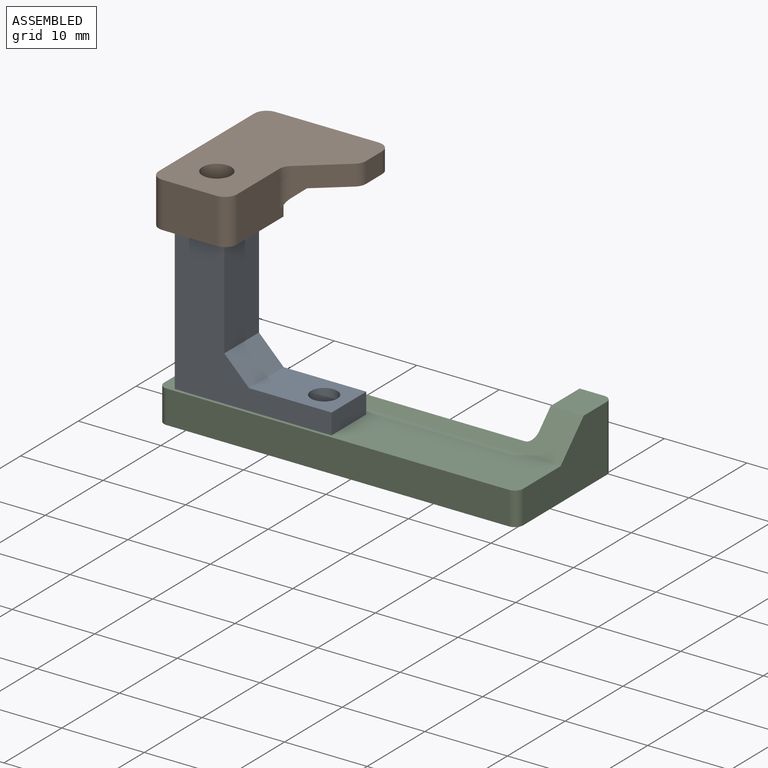
[diagram: assembled view]
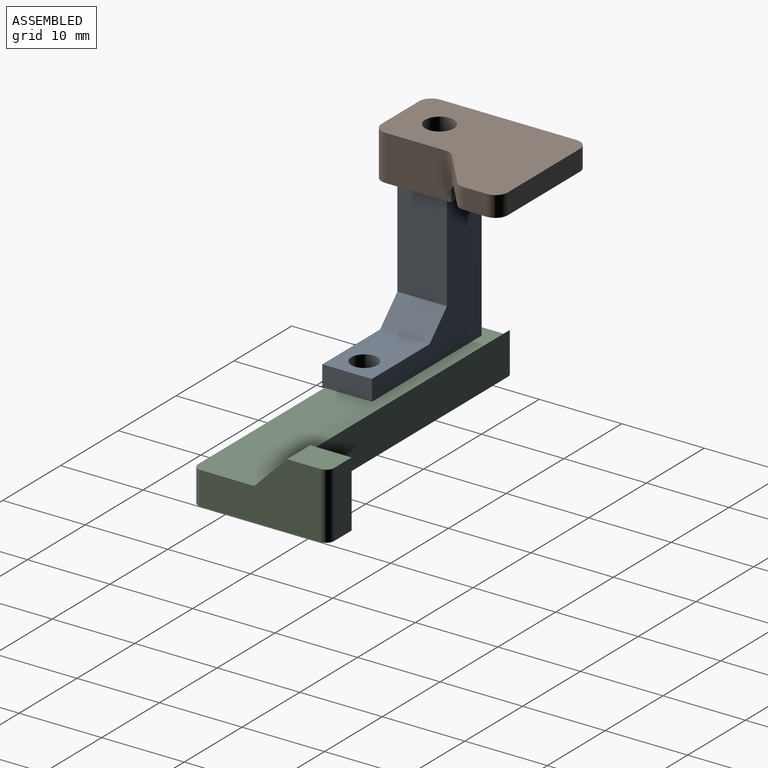
[diagram: assembled view, second angle]
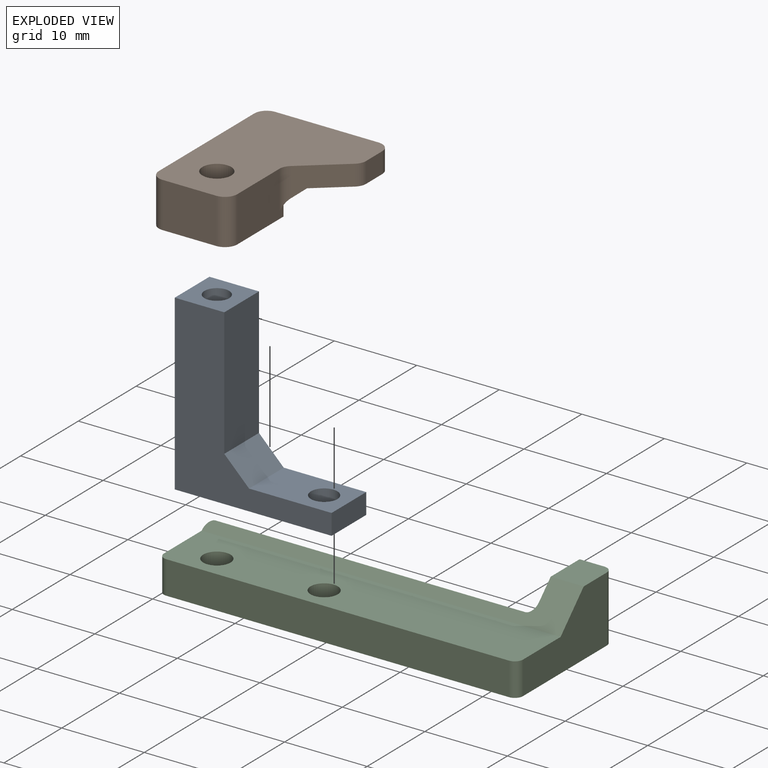
[diagram: exploded view]
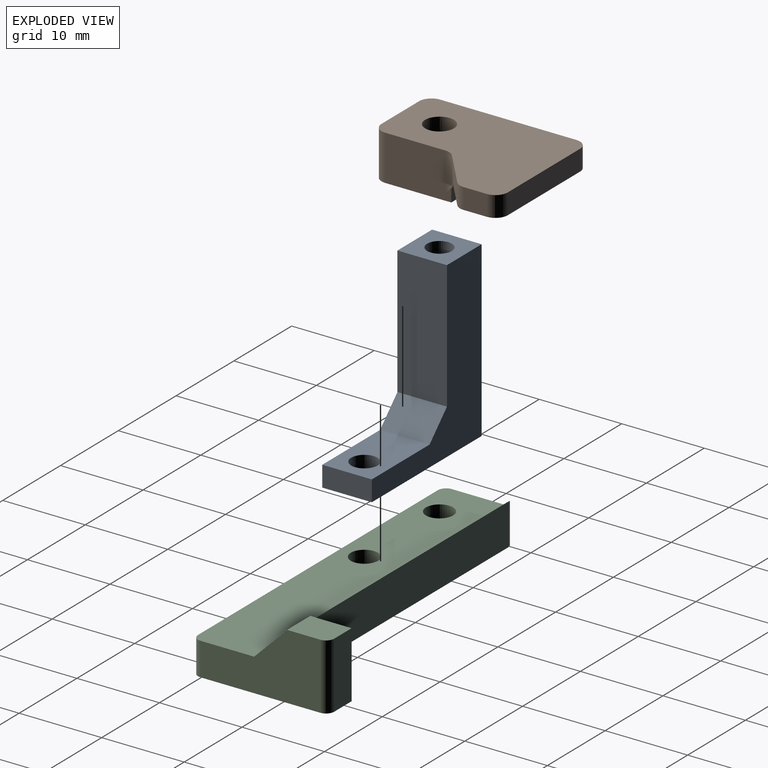
[diagram: exploded view, second angle]
ASSEMBLY  parts=3 mates=3
PART A: 11 faces, bbox 19x21x6 mm
  f0: plane 21x6mm, normal (-1,0,0), area 126mm2, adj f1,f5,f6,f7
  f1: plane 19x6mm, normal (0,-1,0), area 98.9mm2, adj f0,f2,f6,f7,f8,f9
  f2: plane 6x2.5mm, normal (1,0,0), area 15mm2, adj f1,f3,f6,f7
  f3: plane 10x6mm, normal (0,1,0), area 52mm2, adj f2,f6,f7,f9,f10
  f4: plane 15.5x6mm, normal (1,0,0), area 93mm2, adj f5,f6,f7,f10
  f5: plane 6x6mm, normal (0,1,0), area 28.9mm2, adj f0,f4,f6,f7,f8
  f6: plane 21x19mm, normal (0,0,1), area 163mm2, adj f0,f1,f2,f3,f4,f5,f10
  f7: plane 21x19mm, normal (0,0,-1), area 163mm2, adj f0,f1,f2,f3,f4,f5,f10
  f8: cylinder r=1.5mm len=21mm, axis (0,-1,0), area 197.9mm2, adj f1,f5
  f9: cylinder r=1.6mm len=3.2mm, axis (0,-1,0), area 25.1mm2, adj f1,f3
  f10: plane 6x3mm, normal (0.71,0.71,0), area 25.5mm2, adj f3,f4,f6,f7
PART B: 23 faces, bbox 15.5x19.5x5.5 mm
  f0: plane 6.5x3mm, normal (0,-1,0), area 19.5mm2, adj f1,f7,f8,f9
  f1: plane 6.5x3mm, normal (-1,0,0), area 19.5mm2, adj f0,f2,f8,f9
  f2: plane 6.5x3mm, normal (0,1,0), area 19.5mm2, adj f1,f7,f8,f9
  f3: plane 8x5.5mm, normal (1,0,0), area 40.9mm2, adj f4,f8,f14,f15,f16,f21
  f4: plane 9.5x1.5mm, normal (0,1,0), area 14.2mm2, adj f3,f5,f8,f15
  f5: plane 16.5x5.5mm, normal (-1,0,0), area 66.4mm2, adj f4,f8,f10,f14,f15,f19,f20
  f6: plane 6.5x5.5mm, normal (0,-1,0), area 35.8mm2, adj f8,f14,f20,f21
  f7: plane 6.5x3mm, normal (1,0,0), area 19.5mm2, adj f0,f2,f8,f9
  f8: plane 9.5x9.5mm, normal (0,0,-1), area 47mm2, adj f0,f1,f2,f3,f4,f5,f6,f7
  f9: plane 6.5x6.5mm, normal (0,0,-1), area 32.6mm2, adj f0,f1,f2,f7,f22
  f10: plane 15.5x8.5mm, normal (0,0,-1), area 123.4mm2, adj f5,f11,f12,f13,f15,f17,f18,f19
  f11: plane 4.92x4.1mm, normal (0.64,-0.77,0), area 16.9mm2, adj f10,f14,f15,f16,f17
  f12: plane 2.8x2.5mm, normal (1,0,0), area 7mm2, adj f10,f14,f17,f18
  f13: plane 12.5x2.5mm, normal (0,1,0), area 31.2mm2, adj f10,f14,f18,f19
  f14: plane 19.5x15.5mm, normal (0,0,1), area 218.7mm2, adj f3,f5,f6,f11,f12,f13,f16,f17
  f15: plane 11.3x2.2mm, normal (0,0.71,-0.71), area 22.2mm2, adj f3,f4,f5,f10,f11,f16
  f16: cylinder r=1.5mm len=4.7mm, axis (0,0,1), area 5.4mm2, adj f3,f11,f14,f15
  f17: cylinder r=1.5mm len=2.5mm, axis (0,0,-1), area 3.3mm2, adj f10,f11,f12,f14
  f18: cylinder r=1.5mm len=2.5mm, axis (0,0,-1), area 5.9mm2, adj f10,f12,f13,f14
  f19: cylinder r=1.5mm len=2.5mm, axis (0,0,1), area 5.9mm2, adj f5,f10,f13,f14
  f20: cylinder r=1.5mm len=5.5mm, axis (0,0,1), area 13mm2, adj f5,f6,f8,f14
  f21: cylinder r=1.5mm len=5.5mm, axis (0,0,-1), area 13mm2, adj f3,f6,f8,f14
  f22: cylinder r=1.75mm len=3.5mm, axis (0,0,-1), area 27.5mm2, adj f9,f14
PART C: 17 faces, bbox 43.5x16.5x8 mm
  f0: plane 41.5x4mm, normal (0,-1,0), area 166mm2, adj f8,f9,f15,f16
  f1: plane 14.5x8mm, normal (1,0,0), area 82mm2, adj f8,f9,f10,f11,f12,f16
  f2: plane 8x3mm, normal (0,1,0), area 24mm2, adj f3,f9,f10,f12
  f3: plane 8x7mm, normal (-1,0,0), area 54mm2, adj f2,f9,f10,f11,f13
  f4: plane 37.5x5mm, normal (0,1,0), area 187.5mm2, adj f9,f11,f13,f14
  f5: cylinder r=1.65mm len=4mm, axis (0,0,-1), area 41.5mm2, adj f8,f9
  f6: plane 6.5x4mm, normal (-1,0,0), area 26mm2, adj f8,f9,f14,f15
  f7: cylinder r=1.65mm len=4mm, axis (0,0,-1), area 41.5mm2, adj f8,f9
  f8: plane 43.5x7.5mm, normal (0,0,1), area 308.7mm2, adj f0,f1,f5,f6,f7,f11,f15,f16
  f9: plane 43.5x16.5mm, normal (0,0,-1), area 384mm2, adj f0,f1,f2,f3,f4,f5,f6,f7
  f10: plane 5x4mm, normal (0,0,1), area 19.8mm2, adj f1,f2,f3,f11,f12
  f11: plane 43.5x4mm, normal (0,-0.71,0.71), area 78.5mm2, adj f1,f3,f4,f8,f10,f13,f14
  f12: cylinder r=1mm len=8mm, axis (0,0,-1), area 12.6mm2, adj f1,f2,f9,f10
  f13: cylinder r=1mm len=6mm, axis (0,0,1), area 8.4mm2, adj f3,f4,f9,f11
  f14: cylinder r=1mm len=5mm, axis (0,0,-1), area 7.3mm2, adj f4,f6,f9,f11
  f15: cylinder r=1mm len=4mm, axis (0,0,-1), area 6.3mm2, adj f0,f6,f8,f9
  f16: cylinder r=1mm len=4mm, axis (0,0,-1), area 6.3mm2, adj f0,f1,f8,f9
PLACE A rot(axis=(1,0,0),90deg) t=(-7.27,5.95,-14.07)mm
PLACE B rot(axis=(0,0,-1),0deg) t=(-4.27,2.95,3.93)mm
PLACE C t=(34.23,-0.05,-18.29)mm
MATE cylindrical C.f7 <-> A.f9  axis (0,0,-1) through (8.73,2.95,-14.29)mm
MATE parallel C.f8 <-> A.f1  axis (0,0,1) through (12.48,-0.05,-14.29)mm
MATE cylindrical A.f8 <-> B.f22  axis (0,0,-1) through (-4.27,2.95,6.93)mm
